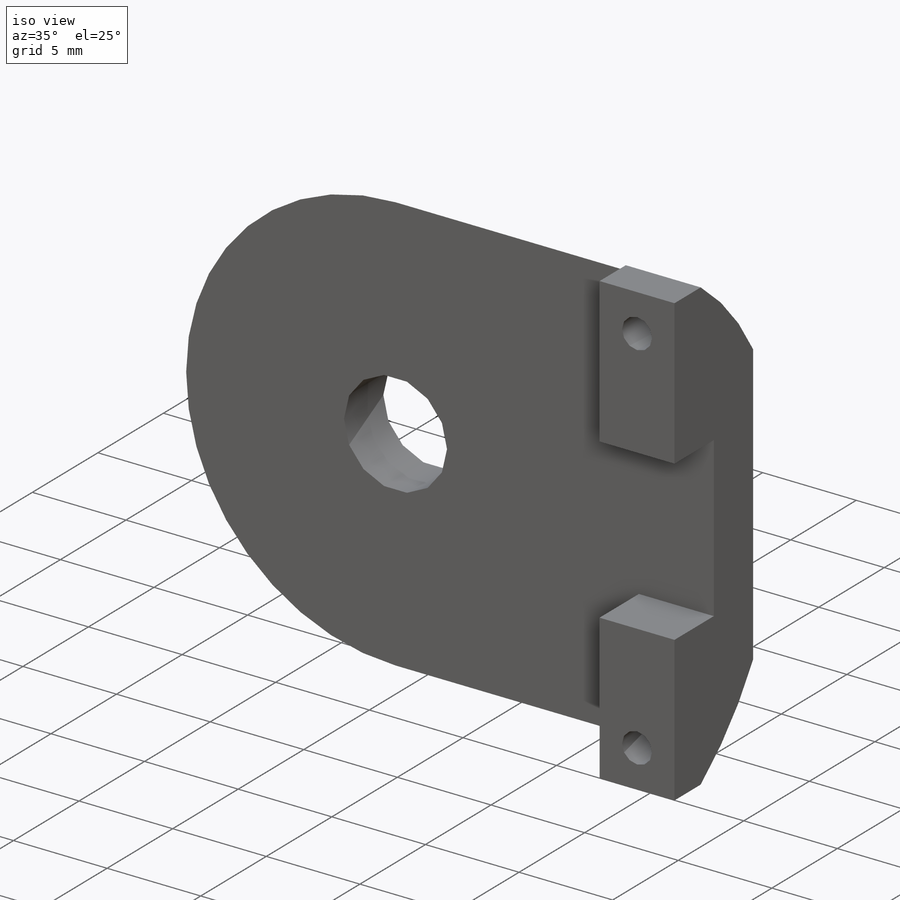
[diagram: iso view]
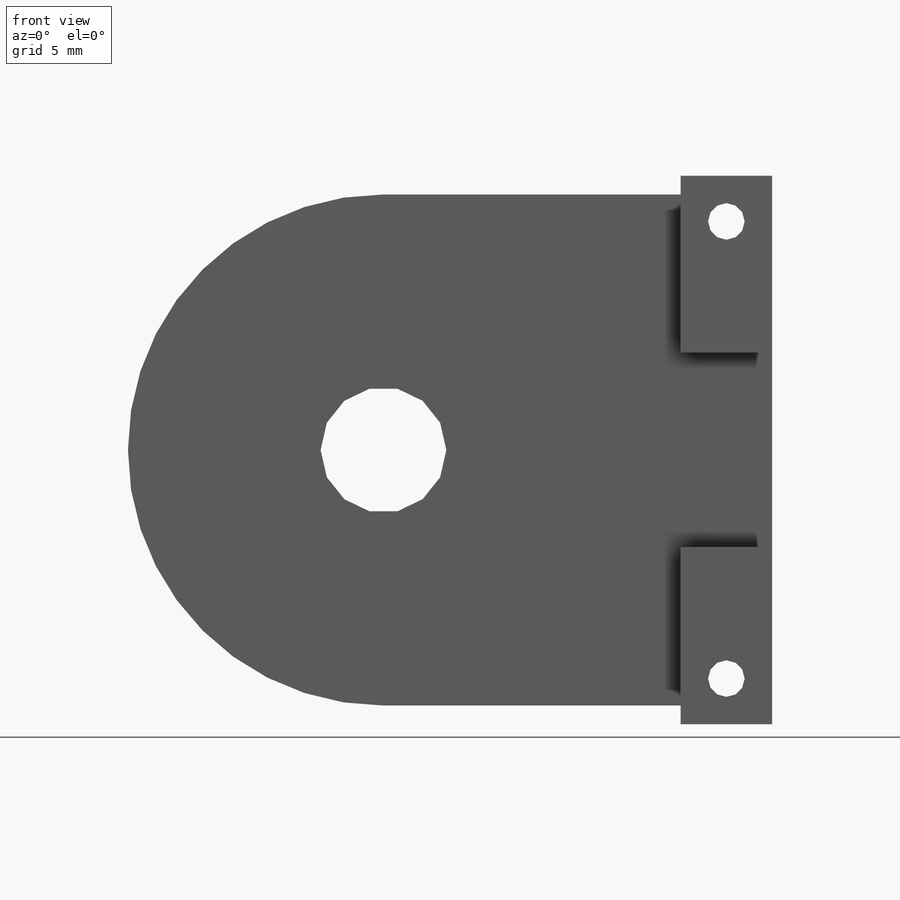
[diagram: front view]
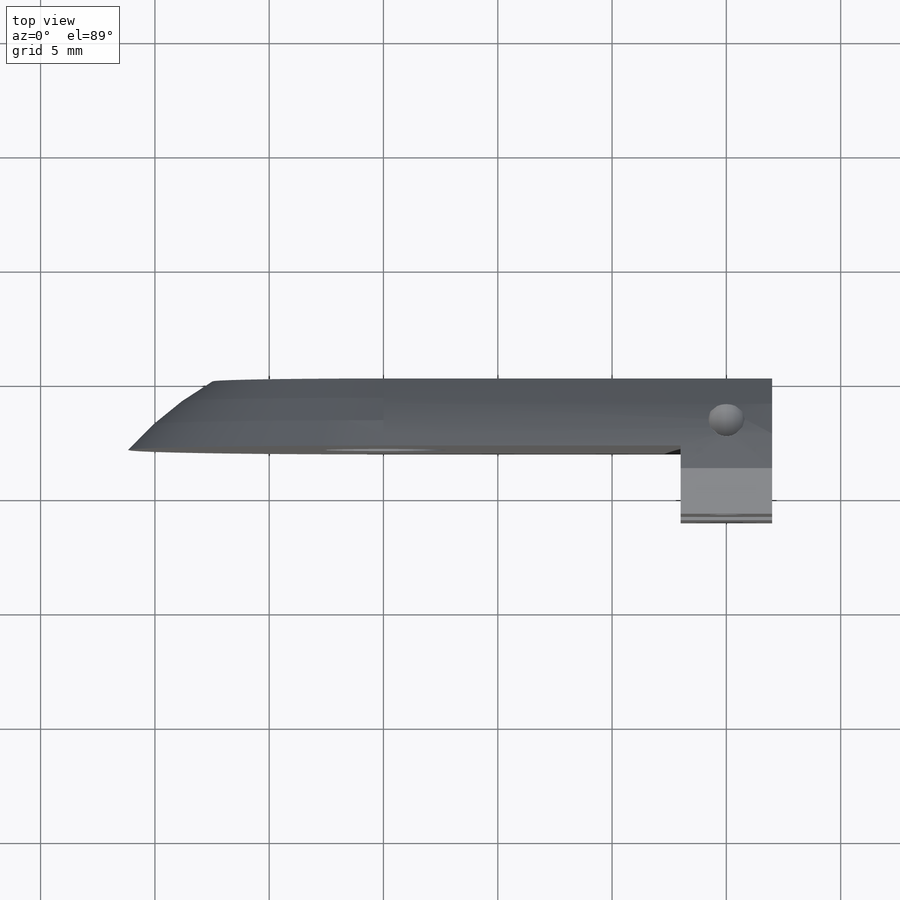
[diagram: top view]
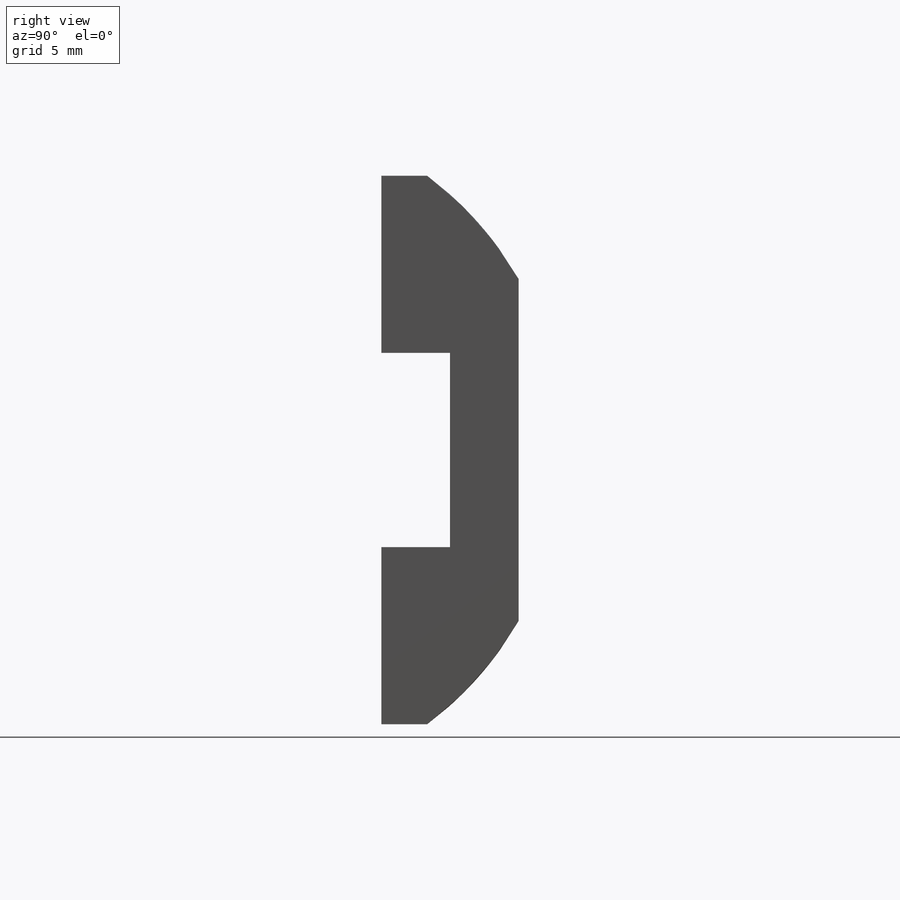
[diagram: right view]
SOLIDWORKS PART (.sldprt)
format: sldprt  version: not decoded by parser v0  size: 260,096 bytes
history: native  units: mm
features: sketch x6, cut_extrude x4, material x1, extrude x1, cut_revolve x1 (+15 scaffold rows collapsed; 2 parser-record rows omitted)
feature tree (30):
  scaffold x15  (default folders/planes/origin — collapsed)
  material  "Material <not specified>"
  sketch  "Sketch1"  dims[D1=~10.816654mm]
  extrude  "Boss-Extrude1"  Depth=6mm
  sketch  "Sketch2"  dims[D1=4.0mm]
  cut_extrude  "Body Hole"  Depth=3mm
  parser-record x2  (decoder bookkeeping rows leaked as tree rows — omitted from the tree; the rows remain in map.json)
  sketch  "Sketch3"  dims[D1=~38.745635mm]
  cut_extrude  "Cut-Extrude2"  [1 undecoded]
  sketch  "Sketch6"  dims[D1=~5.457518mm]
  cut_revolve  "Cut-Revolve1"  Angle=180deg
  sketch  "Sketch7"  dims[D1=~39.941862mm]
  cut_extrude  "Screw Holes"  [1 undecoded]
  sketch  "Sketch9"  dims[D1=2.5mm]
  cut_extrude  "Screw Heads"  Depth=4mm
decode coverage: 10 of 12 modeling features carry decoded parameters
note: ~ marks probable driven/reference dimensions
note: 2 parameter values undecoded
note: suppression state not decoded; provenance and decode notes live in map.json
